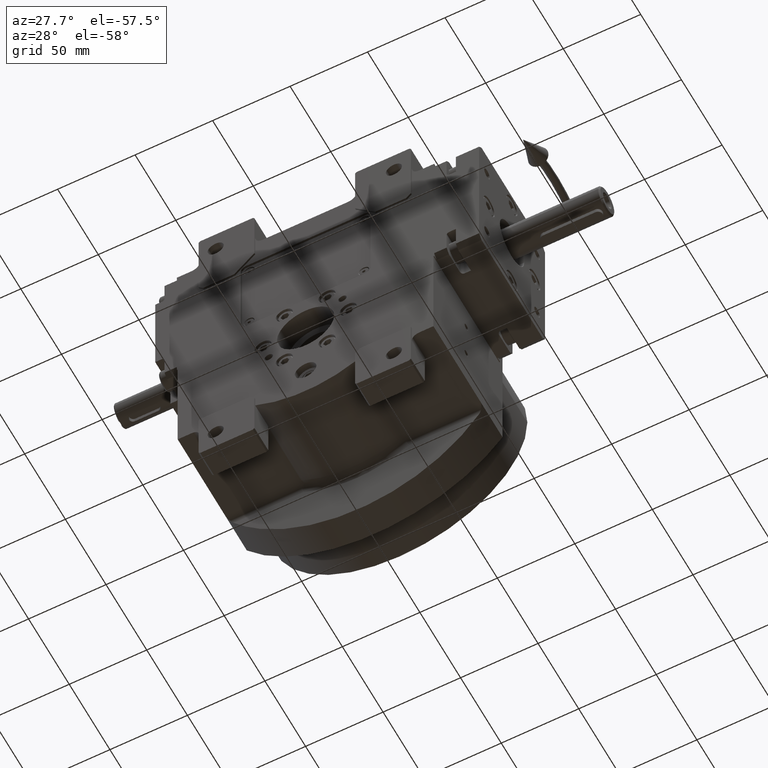
[diagram: clean part render]
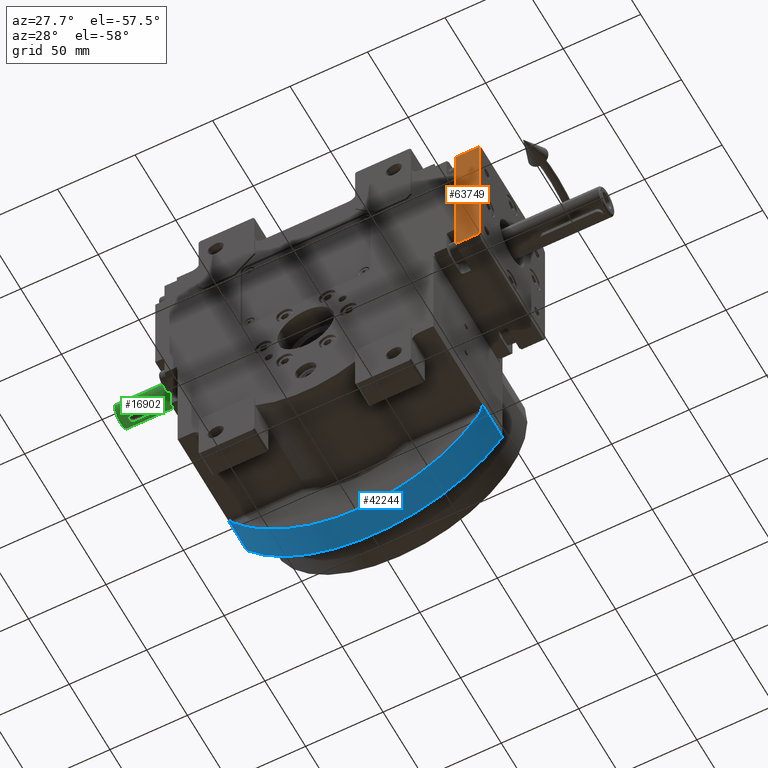
[diagram: same view with three faces highlighted in distinct colors, each labeled with its STEP entity id]
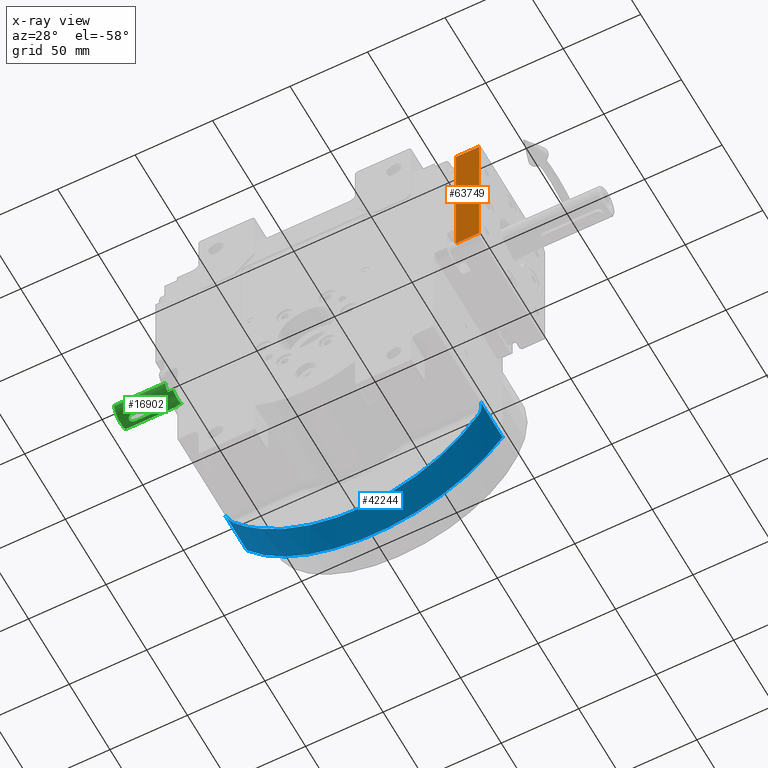
[diagram: x-ray of the same camera — body ghosted, the three highlighted faces saturated]
A machine part, auxiliary view with three faces highlighted in distinct colors.
The next image is the same camera in x-ray (body ghosted, the three faces saturated) — at least one of them is partly hidden behind the body in this view.
Their STEP definitions:

[orange] entity #63749 — the highlighted planar face has unit normal (0, -1, -0).
#1235 = ORIENTED_EDGE ( 'NONE', *, *, #16717, .T. ) ;
#2123 = LINE ( 'NONE', #2471, #62214 ) ;
#2471 = CARTESIAN_POINT ( 'NONE',  ( -40.49999999999940314, -15.00000000000000000, -46.00000000000052580 ) ) ;
#2991 = DIRECTION ( 'NONE',  ( -9.547918011776208986E-15, 4.930380657631240582E-32, 1.000000000000000000 ) ) ;
#5253 = VERTEX_POINT ( 'NONE', #26315 ) ;
#8892 = LINE ( 'NONE', #27220, #50886 ) ;
#8936 = DIRECTION ( 'NONE',  ( -1.399999034475975771E-30, -1.000000000000000000, 0.000000000000000000 ) ) ;
#10749 = VERTEX_POINT ( 'NONE', #43440 ) ;
#12727 = ORIENTED_EDGE ( 'NONE', *, *, #20125, .F. ) ;
#14967 = VERTEX_POINT ( 'NONE', #44218 ) ;
#16717 = EDGE_CURVE ( 'NONE', #37154, #14967, #2123, .T. ) ;
#19653 = DIRECTION ( 'NONE',  ( -9.547918011776207408E-15, 4.930380657631240582E-32, 1.000000000000000000 ) ) ;
#20125 = EDGE_CURVE ( 'NONE', #5253, #14967, #70203, .T. ) ;
#22945 = AXIS2_PLACEMENT_3D ( 'NONE', #62449, #67590, #2991 ) ;
#25502 = CARTESIAN_POINT ( 'NONE',  ( -40.49999999999940314, 0.000000000000000000, -46.00000000000000000 ) ) ;
#26315 = CARTESIAN_POINT ( 'NONE',  ( -40.50000000000037659, 0.000000000000000000, 46.00000000000105160 ) ) ;
#27220 = CARTESIAN_POINT ( 'NONE',  ( -40.49999999999940314, 0.000000000000000000, -46.00000000000000000 ) ) ;
#31274 = DIRECTION ( 'NONE',  ( -1.399999034475975771E-30, -1.000000000000000000, 0.000000000000000000 ) ) ;
#37154 = VERTEX_POINT ( 'NONE', #63437 ) ;
#40051 = PLANE ( 'NONE',  #22945 ) ;
#42331 = CARTESIAN_POINT ( 'NONE',  ( -40.50000000000037659, 0.000000000000000000, 46.00000000000105160 ) ) ;
#43440 = CARTESIAN_POINT ( 'NONE',  ( -40.49999999999940314, 0.000000000000000000, -46.00000000000000000 ) ) ;
#44218 = CARTESIAN_POINT ( 'NONE',  ( -40.50000000000037659, -15.00000000000000000, 46.00000000000106581 ) ) ;
#45201 = FACE_OUTER_BOUND ( 'NONE', #64987, .T. ) ;
#50886 = VECTOR ( 'NONE', #31274, 1000.000000000000000 ) ;
#52306 = DIRECTION ( 'NONE',  ( -9.547918011776207408E-15, 4.930380657631240582E-32, 1.000000000000000000 ) ) ;
#58715 = ORIENTED_EDGE ( 'NONE', *, *, #69005, .F. ) ;
#60580 = VECTOR ( 'NONE', #8936, 1000.000000000000000 ) ;
#62214 = VECTOR ( 'NONE', #52306, 1000.000000000000000 ) ;
#62289 = EDGE_CURVE ( 'NONE', #10749, #37154, #8892, .T. ) ;
#62449 = CARTESIAN_POINT ( 'NONE',  ( -40.49999999999940314, 0.000000000000000000, -49.00000000000052580 ) ) ;
#63437 = CARTESIAN_POINT ( 'NONE',  ( -40.49999999999940314, -15.00000000000000000, -46.00000000000052580 ) ) ;
#63749 = ADVANCED_FACE ( 'NONE', ( #45201 ), #40051, .T. ) ;
#64987 = EDGE_LOOP ( 'NONE', ( #58715, #67116, #1235, #12727 ) ) ;
#67116 = ORIENTED_EDGE ( 'NONE', *, *, #62289, .T. ) ;
#67590 = DIRECTION ( 'NONE',  ( -1.000000000000000000, -1.406162010298009320E-30, -9.547918011776208986E-15 ) ) ;
#69005 = EDGE_CURVE ( 'NONE', #10749, #5253, #71346, .T. ) ;
#70203 = LINE ( 'NONE', #42331, #60580 ) ;
#71346 = LINE ( 'NONE', #25502, #72180 ) ;
#72180 = VECTOR ( 'NONE', #19653, 1000.000000000000000 ) ;

[blue] entity #42244 — the highlighted cylindrical surface (partial cylindrical patch) has radius 101 mm, axis along (0, -1, 0).
#73 = CARTESIAN_POINT ( 'NONE',  ( 81.69830013237982769, 20.07905893341697734, -59.38364006391446281 ) ) ;
#340 = VERTEX_POINT ( 'NONE', #2726 ) ;
#724 = CARTESIAN_POINT ( 'NONE',  ( -82.50000025288930772, 16.91834889469715009, -58.26448317800269905 ) ) ;
#1573 = VERTEX_POINT ( 'NONE', #72190 ) ;
#1592 = VECTOR ( 'NONE', #13487, 1000.000000000000000 ) ;
#2726 = CARTESIAN_POINT ( 'NONE',  ( 82.50000000000000000, 44.50000000000000000, -58.26448317800490173 ) ) ;
#4100 = CARTESIAN_POINT ( 'NONE',  ( 82.25085206093629608, 18.75917311272343113, -58.61567809756788705 ) ) ;
#4561 = CARTESIAN_POINT ( 'NONE',  ( -80.22746404056894676, 21.53953279467798509, -61.35597532382573149 ) ) ;
#4810 = CARTESIAN_POINT ( 'NONE',  ( 81.49143229551002321, 20.39137980498475500, -59.66698084528087520 ) ) ;
#6106 = CARTESIAN_POINT ( 'NONE',  ( 79.07941511760090236, 21.89931762037159757, -62.82870446426660749 ) ) ;
#8505 = CARTESIAN_POINT ( 'NONE',  ( -79.07941511760090236, 21.89931762037159757, -62.82870446426660749 ) ) ;
#9308 = CARTESIAN_POINT ( 'NONE',  ( -81.34917618832122344, 20.58147960828986101, -59.86078435060557723 ) ) ;
#9565 = CARTESIAN_POINT ( 'NONE',  ( 80.50647476030944460, 21.37121998119656752, -60.98950514526089961 ) ) ;
#9681 = CARTESIAN_POINT ( 'NONE',  ( -81.73812114539012441, 20.02036615768224337, -59.32899351946324629 ) ) ;
#10407 = CARTESIAN_POINT ( 'NONE',  ( -80.73001530451037411, 21.21695493100238750, -60.69395992479112323 ) ) ;
#10650 = CARTESIAN_POINT ( 'NONE',  ( 81.42790458846677382, 20.47856128304887235, -59.75363274100349287 ) ) ;
#10780 = CARTESIAN_POINT ( 'NONE',  ( -82.50000025288930772, 16.91834889469715009, -58.26448317800269905 ) ) ;
#12522 = EDGE_CURVE ( 'NONE', #56505, #40144, #22653, .T. ) ;
#13487 = DIRECTION ( 'NONE',  ( 0.000000000000000000, 1.000000000000000000, -3.204722641206275033E-13 ) ) ;
#14793 = B_SPLINE_CURVE_WITH_KNOTS ( 'NONE', 3,
 ( #22051, #55407, #20937, #31961, #71940, #54662, #49902, #4100, #27173, #59824, #43309, #72306, #38170, #73, #32326, #4810, #43693, #22413, #10650, #26799, #16152, #44434, #16512, #9565, #55767, #33055, #49531, #60574, #66796, #15053 ),
 .UNSPECIFIED., .F., .F.,
 ( 4, 2, 2, 1, 2, 2, 2, 1, 1, 1, 2, 2, 2, 1, 1, 2, 2, 4 ),
 ( 0.000000000000000000, 0.1249999999999952538, 0.1874999999999928946, 0.2187499999999911737, 0.2343749999999912847, 0.2499999999999913958, 0.3749999999999962808, 0.4374999999999999445, 0.4687500000000017208, 0.4843750000000011657, 0.4921874999999993894, 0.4999999999999976685, 0.6249999999999937828, 0.6874999999999926725, 0.7187499999999908962, 0.7343749999999890088, 0.7499999999999870104, 1.000000000000000000 ),
 .UNSPECIFIED. ) ;
#15053 = CARTESIAN_POINT ( 'NONE',  ( 79.07941511760090236, 21.89931762037159757, -62.82870446426660749 ) ) ;
#15158 = CARTESIAN_POINT ( 'NONE',  ( -81.58804467211824374, 20.26496451395043863, -59.53548009540809716 ) ) ;
#16152 = CARTESIAN_POINT ( 'NONE',  ( 81.09354107287323643, 20.88633653462931505, -60.20738940263774452 ) ) ;
#16512 = CARTESIAN_POINT ( 'NONE',  ( 80.67986495983198836, 21.25008021150438253, -60.76023005191299831 ) ) ;
#19709 = AXIS2_PLACEMENT_3D ( 'NONE', #44077, #60938, #55029 ) ;
#19875 = CARTESIAN_POINT ( 'NONE',  ( -35.23829626675055948, 26.72700073187584380, -118.0093749299176551 ) ) ;
#20623 = EDGE_CURVE ( 'NONE', #1573, #23545, #14793, .T. ) ;
#20698 = CARTESIAN_POINT ( 'NONE',  ( -81.00253734387308668, 20.96910105288543491, -60.32919674137146160 ) ) ;
#20937 = CARTESIAN_POINT ( 'NONE',  ( 82.47253607967915912, 17.61559969205776710, -58.30341363773654706 ) ) ;
#21438 = CARTESIAN_POINT ( 'NONE',  ( -79.29669672345021070, 21.87734312251762603, -62.55522274197279842 ) ) ;
#21867 = EDGE_CURVE ( 'NONE', #340, #56505, #45481, .T. ) ;
#22051 = CARTESIAN_POINT ( 'NONE',  ( 82.50000025289411099, 16.91834889478760218, -58.26448317800100085 ) ) ;
#22413 = CARTESIAN_POINT ( 'NONE',  ( 81.43932428355820718, 20.46315245413490658, -59.73806804395727710 ) ) ;
#22653 = LINE ( 'NONE', #67409, #28825 ) ;
#23231 = CARTESIAN_POINT ( 'NONE',  ( -82.19212536373463251, 18.95499668696275108, -58.69799795093508976 ) ) ;
#23376 = EDGE_CURVE ( 'NONE', #53534, #40144, #55592, .T. ) ;
#23545 = VERTEX_POINT ( 'NONE', #6106 ) ;
#23709 = CARTESIAN_POINT ( 'NONE',  ( -79.07941511760090236, 21.89931762037159757, -62.82870446426660749 ) ) ;
#25862 =( BOUNDED_CURVE ( )  B_SPLINE_CURVE ( 3, ( #58400, #52871, #19875, #8505 ),
 .UNSPECIFIED., .F., .F. ) 
 B_SPLINE_CURVE_WITH_KNOTS ( ( 4, 4 ),
 ( 2.242175447501740138, 4.041009859677784810 ),
 .UNSPECIFIED. ) 
 CURVE ( )  GEOMETRIC_REPRESENTATION_ITEM ( )  RATIONAL_B_SPLINE_CURVE ( ( 1.000000000000000000, 0.7480442538895477611, 0.7480442538895477611, 1.000000000000000000 ) ) 
 REPRESENTATION_ITEM ( '' )  );
#26799 = CARTESIAN_POINT ( 'NONE',  ( 81.26217294362444932, 20.69966824175040188, -59.97940255426231460 ) ) ;
#27173 = CARTESIAN_POINT ( 'NONE',  ( 82.22811298002550018, 18.83783445398179879, -58.64757300461708667 ) ) ;
#28749 = CARTESIAN_POINT ( 'NONE',  ( -81.93438855332463788, 19.62647568005801091, -59.05733191141957406 ) ) ;
#28825 = VECTOR ( 'NONE', #62612, 1000.000000000000000 ) ;
#31961 = CARTESIAN_POINT ( 'NONE',  ( 82.39872407940163157, 18.11501507563944102, -58.40763719235167883 ) ) ;
#32326 = CARTESIAN_POINT ( 'NONE',  ( 81.56254368569533142, 20.28923244151389582, -59.56978747175477906 ) ) ;
#32796 = CARTESIAN_POINT ( 'NONE',  ( -81.13392427839578147, 20.83711865366613836, -60.15248250266186147 ) ) ;
#33055 = CARTESIAN_POINT ( 'NONE',  ( 80.37906699170480351, 21.45205541374012981, -61.15723489496355825 ) ) ;
#33531 = CARTESIAN_POINT ( 'NONE',  ( -82.18074734762859634, 18.99037054842644068, -58.71392683955053826 ) ) ;
#34276 = EDGE_CURVE ( 'NONE', #1573, #340, #46496, .T. ) ;
#37198 = CARTESIAN_POINT ( 'NONE',  ( -80.15227623940505453, 21.58000033619837055, -61.45424766586283027 ) ) ;
#37654 = ORIENTED_EDGE ( 'NONE', *, *, #34276, .F. ) ;
#38170 = CARTESIAN_POINT ( 'NONE',  ( 81.80366361176244538, 19.88883230163929738, -59.23827394342579566 ) ) ;
#39032 = CARTESIAN_POINT ( 'NONE',  ( -82.39818716574825430, 18.29214930068103584, -58.40933296397236774 ) ) ;
#39352 = ORIENTED_EDGE ( 'NONE', *, *, #23376, .T. ) ;
#40144 = VERTEX_POINT ( 'NONE', #724 ) ;
#40642 = CARTESIAN_POINT ( 'NONE',  ( 82.50000000000000000, 16.91835683624545084, -58.26448317799610521 ) ) ;
#40659 = ORIENTED_EDGE ( 'NONE', *, *, #43495, .T. ) ;
#42244 = ADVANCED_FACE ( 'NONE', ( #70851 ), #44070, .T. ) ;
#43071 = CARTESIAN_POINT ( 'NONE',  ( -81.39859511820240812, 20.51750846031091058, -59.79355307824163646 ) ) ;
#43309 = CARTESIAN_POINT ( 'NONE',  ( 82.11150391117881497, 19.21443188683993597, -58.81093780841251828 ) ) ;
#43495 = EDGE_CURVE ( 'NONE', #23545, #53534, #25862, .T. ) ;
#43693 = CARTESIAN_POINT ( 'NONE',  ( 81.46026041791650130, 20.43452737706277134, -59.70951587504499258 ) ) ;
#43815 = CARTESIAN_POINT ( 'NONE',  ( -80.53533946670283683, 21.36070962265149475, -60.95225153397537809 ) ) ;
#44070 = CYLINDRICAL_SURFACE ( 'NONE', #44980, 101.0000000000000000 ) ;
#44077 = CARTESIAN_POINT ( 'NONE',  ( 7.105427357600998703E-15, 44.50000000000000000, -2.842170943040399481E-14 ) ) ;
#44175 = CARTESIAN_POINT ( 'NONE',  ( -79.61551648198906150, 21.80882043248135105, -62.14957175091598884 ) ) ;
#44434 = CARTESIAN_POINT ( 'NONE',  ( 80.82102002133457574, 21.13419041274626409, -60.57215332407864139 ) ) ;
#44546 = CARTESIAN_POINT ( 'NONE',  ( -82.11890825924537296, 19.17333040572686897, -58.80041014588149295 ) ) ;
#44980 = AXIS2_PLACEMENT_3D ( 'NONE', #65337, #55411, #72310 ) ;
#45481 = CIRCLE ( 'NONE', #19709, 101.0000000000000568 ) ;
#46496 = LINE ( 'NONE', #40642, #1592 ) ;
#49270 = CARTESIAN_POINT ( 'NONE',  ( -80.27744809373503188, 21.51181358067990956, -61.29056225779282130 ) ) ;
#49531 = CARTESIAN_POINT ( 'NONE',  ( 80.35206367196470012, 21.46838346584645407, -61.19270825183458840 ) ) ;
#49902 = CARTESIAN_POINT ( 'NONE',  ( 82.28383433506067490, 18.64069096983530827, -58.56938613292126661 ) ) ;
#50747 = CARTESIAN_POINT ( 'NONE',  ( -82.15636516664353906, 19.06389190313688786, -58.74803913442542580 ) ) ;
#50770 = ORIENTED_EDGE ( 'NONE', *, *, #21867, .F. ) ;
#51093 = CARTESIAN_POINT ( 'NONE',  ( -82.49609777619635054, 17.62626212257189451, -58.27000855899486709 ) ) ;
#52871 = CARTESIAN_POINT ( 'NONE',  ( 35.23829626675085080, 26.72700073187583669, -118.0093749299175983 ) ) ;
#53534 = VERTEX_POINT ( 'NONE', #23709 ) ;
#54056 = CARTESIAN_POINT ( 'NONE',  ( -81.37888672156219627, 20.54319761275450773, -59.82037339315679247 ) ) ;
#54662 = CARTESIAN_POINT ( 'NONE',  ( 82.31344566182397671, 18.52073843394552455, -58.52775116034806757 ) ) ;
#55029 = DIRECTION ( 'NONE',  ( 0.8168316831683155588, 0.000000000000000000, -0.5768760710693557892 ) ) ;
#55407 = CARTESIAN_POINT ( 'NONE',  ( 82.49804962506094341, 17.27219997499132020, -58.26724482499226099 ) ) ;
#55411 = DIRECTION ( 'NONE',  ( 0.000000000000000000, -1.000000000000000000, 0.000000000000000000 ) ) ;
#55592 = B_SPLINE_CURVE_WITH_KNOTS ( 'NONE', 3,
 ( #70601, #21438, #44175, #70950, #37198, #4561, #49270, #71676, #43815, #10407, #20698, #32796, #59580, #9308, #54056, #43071, #65448, #15158, #9681, #28749, #72417, #44546, #50747, #33531, #23231, #39032, #51093, #10780 ),
 .UNSPECIFIED., .F., .F.,
 ( 4, 1, 1, 1, 2, 2, 2, 1, 1, 1, 2, 2, 2, 1, 1, 2, 2, 4 ),
 ( 0.000000000000000000, 0.1249999999999688582, 0.1874999999999539535, 0.2187499999999441003, 0.2343749999999404088, 0.2499999999999367450, 0.3749999999999046318, 0.4374999999998889222, 0.4687499999998822608, 0.4843749999998798184, 0.4921874999998806510, 0.4999999999998814282, 0.6249999999999148459, 0.6874999999999311662, 0.7187499999999392708, 0.7343749999999439337, 0.7499999999999485967, 1.000000000000000000 ),
 .UNSPECIFIED. ) ;
#55767 = CARTESIAN_POINT ( 'NONE',  ( 80.43028219000714785, 21.42012309773772571, -61.08986411255584414 ) ) ;
#56505 = VERTEX_POINT ( 'NONE', #66688 ) ;
#58400 = CARTESIAN_POINT ( 'NONE',  ( 79.07941511760090236, 21.89931762037159757, -62.82870446426660749 ) ) ;
#59007 = ORIENTED_EDGE ( 'NONE', *, *, #12522, .F. ) ;
#59580 = CARTESIAN_POINT ( 'NONE',  ( -81.27881411053982674, 20.66904213262886003, -59.95633850576680857 ) ) ;
#59824 = CARTESIAN_POINT ( 'NONE',  ( 82.21583948808414277, 18.87870238641455956, -58.66477763873123052 ) ) ;
#60574 = CARTESIAN_POINT ( 'NONE',  ( 79.92973229158195636, 21.71657702894173170, -61.74680443087934378 ) ) ;
#60938 = DIRECTION ( 'NONE',  ( 0.000000000000000000, 1.000000000000000000, 0.000000000000000000 ) ) ;
#62612 = DIRECTION ( 'NONE',  ( 0.000000000000000000, -1.000000000000000000, 3.199570353973790170E-13 ) ) ;
#65337 = CARTESIAN_POINT ( 'NONE',  ( 0.000000000000000000, -40.50000000000000000, 6.123233995736770082E-21 ) ) ;
#65448 = CARTESIAN_POINT ( 'NONE',  ( -81.40753760543589124, 20.50573026603647619, -59.78137789468193830 ) ) ;
#66688 = CARTESIAN_POINT ( 'NONE',  ( -82.50000000000000000, 44.50000000000000000, -58.26448317800490173 ) ) ;
#66796 = CARTESIAN_POINT ( 'NONE',  ( 79.51411100511737118, 21.85535520666392983, -62.28157402712096768 ) ) ;
#67409 = CARTESIAN_POINT ( 'NONE',  ( -82.50000000000000000, 44.50000000000000000, -58.26448317800490173 ) ) ;
#68965 = ORIENTED_EDGE ( 'NONE', *, *, #20623, .T. ) ;
#70601 = CARTESIAN_POINT ( 'NONE',  ( -79.07941511760090236, 21.89931762037159757, -62.82870446426660749 ) ) ;
#70851 = FACE_OUTER_BOUND ( 'NONE', #71371, .T. ) ;
#70950 = CARTESIAN_POINT ( 'NONE',  ( -79.97535127551232392, 21.66664564340883103, -61.68461457508408330 ) ) ;
#71371 = EDGE_LOOP ( 'NONE', ( #50770, #37654, #68965, #40659, #39352, #59007 ) ) ;
#71676 = CARTESIAN_POINT ( 'NONE',  ( -80.30120579744968268, 21.49826727027429740, -61.25943347106313297 ) ) ;
#71940 = CARTESIAN_POINT ( 'NONE',  ( 82.36819266564545217, 18.27887283816367514, -58.45070407988076511 ) ) ;
#72190 = CARTESIAN_POINT ( 'NONE',  ( 82.50000025289411099, 16.91834889478760218, -58.26448317800100085 ) ) ;
#72306 = CARTESIAN_POINT ( 'NONE',  ( 81.99993046940103625, 19.49494182401489795, -58.96661193781081067 ) ) ;
#72310 = DIRECTION ( 'NONE',  ( 1.000000000000000000, 0.000000000000000000, 0.000000000000000000 ) ) ;
#72417 = CARTESIAN_POINT ( 'NONE',  ( -82.02530717054500542, 19.42278220544037382, -58.93101546184722395 ) ) ;

[green] entity #16902 — the highlighted cylindrical surface (edge-blend (fillet) strip) has radius 8 mm, axis along (-1, 0, -0).
#286 = CARTESIAN_POINT ( 'NONE',  ( -7.740656023228742022, -7.974629792047414512, -2.021280222097369350 ) ) ;
#621 = CARTESIAN_POINT ( 'NONE',  ( -7.749664401063705910, 10.01872935547022792, -1.986231297070850665 ) ) ;
#971 = CARTESIAN_POINT ( 'NONE',  ( -7.839977690278450595, 10.42802790405988311, -1.591968337224201724 ) ) ;
#1004 = CARTESIAN_POINT ( 'NONE',  ( -7.657274517123529023, -7.440225538193761423, -2.316482665155040088 ) ) ;
#1317 = CARTESIAN_POINT ( 'NONE',  ( -7.940919006667417790, 10.80399002368006478, 0.9704362042913028397 ) ) ;
#1352 = CARTESIAN_POINT ( 'NONE',  ( -7.605022254006595261, -6.790474098278227899, -2.483408542904558480 ) ) ;
#1692 = CARTESIAN_POINT ( 'NONE',  ( -7.798009086693891589, 10.24908076193292317, 1.786448939248669321 ) ) ;
#1722 = CARTESIAN_POINT ( 'NONE',  ( -7.995162348639846428, -8.985368823457067222, -0.3161290646995249531 ) ) ;
#2043 = CARTESIAN_POINT ( 'NONE',  ( -7.818950924554045834, 10.34151174380530591, 1.694038868013101107 ) ) ;
#2292 = ORIENTED_EDGE ( 'NONE', *, *, #64836, .F. ) ;
#2425 = CARTESIAN_POINT ( 'NONE',  ( -7.818308903479839422, -8.337577135602677103, -1.695263955323612848 ) ) ;
#2801 = CARTESIAN_POINT ( 'NONE',  ( -7.946851830538784967, -8.824367221382333426, -0.9205611239592297323 ) ) ;
#3810 = EDGE_CURVE ( 'NONE', #25683, #71637, #13034, .T. ) ;
#3830 = CARTESIAN_POINT ( 'NONE',  ( -7.670948581178381964, 9.545693707699285824, -2.270880331648928330 ) ) ;
#3952 = CARTESIAN_POINT ( 'NONE',  ( -7.712108559403882069, -7.816016782250823525, 2.127502132909679045 ) ) ;
#4303 = CARTESIAN_POINT ( 'NONE',  ( -7.736332535508957164, -7.949241378412951420, 2.037147536094310318 ) ) ;
#4556 = DIRECTION ( 'NONE',  ( 5.028988270783950259E-30, 1.000000000000000000, 3.217488641336500757E-29 ) ) ;
#4630 = CARTESIAN_POINT ( 'NONE',  ( -7.657274514683635402, 9.440225495199683792, 2.316482682551818773 ) ) ;
#4664 = CARTESIAN_POINT ( 'NONE',  ( -7.617678112720124517, -7.029917826378963674, 2.443521394260771640 ) ) ;
#4998 = CARTESIAN_POINT ( 'NONE',  ( -7.626113605264168704, 9.143576092737840000, 2.417132231454346414 ) ) ;
#5358 = CARTESIAN_POINT ( 'NONE',  ( -7.724778493946299562, 9.886405156516515191, 2.080357823360818426 ) ) ;
#5714 = CARTESIAN_POINT ( 'NONE',  ( -7.619989655309055365, 9.066245860163258286, 2.436251374074806186 ) ) ;
#5747 = CARTESIAN_POINT ( 'NONE',  ( -7.724778522608795939, -7.886405297773482204, -2.080357729226393726 ) ) ;
#5768 = VERTEX_POINT ( 'NONE', #36136 ) ;
#6080 = CARTESIAN_POINT ( 'NONE',  ( -7.785008876057604610, 10.18999816436970285, 1.842441418731128877 ) ) ;
#6082 = CARTESIAN_POINT ( 'NONE',  ( -6.106226635438360972E-13, 18.50000000000054357, -8.000000000000035527 ) ) ;
#6111 = CARTESIAN_POINT ( 'NONE',  ( -7.806699535334007400, -8.287437797547418938, -1.748100577266491706 ) ) ;
#6455 = CARTESIAN_POINT ( 'NONE',  ( -7.866367115377316033, 10.53234680562570524, 1.455977534968692755 ) ) ;
#6791 = CARTESIAN_POINT ( 'NONE',  ( -7.999984946499269611, 10.99999999902016157, -0.1559136959357281804 ) ) ;
#6798 = B_SPLINE_CURVE_WITH_KNOTS ( 'NONE', 3,
 ( #45699, #29199, #7173, #1352, #68091, #23688, #22985, #46058, #51190, #17103, #40550, #62948, #33626, #1004, #33984, #12681, #35049, #39480, #51917, #50844, #22256, #67391, #39832, #17450, #5747, #50469, #286, #11592, #6111, #45351, #2425, #19981, #52613, #46759, #52987, #36497, #25134, #41998, #8627, #58504, #46402, #7542, #36873, #35773, #30626, #24055, #13398, #2801, #63301, #63679, #58146, #19274, #1722, #18905, #42371 ),
 .UNSPECIFIED., .F., .F.,
 ( 4, 2, 2, 2, 2, 1, 1, 2, 2, 2, 2, 1, 1, 1, 2, 2, 2, 2, 2, 2, 2, 2, 1, 1, 1, 2, 2, 2, 1, 1, 1, 2, 4 ),
 ( 0.000000000000000000, 0.03124999999863926903, 0.04687499999795888966, 0.06249999999727851030, 0.09374999999591777933, 0.1093749999952372265, 0.1171874999948969293, 0.1210937499947267598, 0.1249999999945565765, 0.1562499999931941386, 0.1718749999925127392, 0.1796874999921719285, 0.1835937499920018146, 0.1855468749919167160, 0.1865234374918742222, 0.1874999999918317284, 0.2499999999890759605, 0.2578124999887314583, 0.2656249999883870672, 0.2812499999876985068, 0.3124999999863212752, 0.3144531249862347888, 0.3164062499861481914, 0.3203124999859750521, 0.3281249999856287736, 0.3437499999849362164, 0.3749999999835511022, 0.3789062499833780184, 0.3828124999832048792, 0.3906249999828584896, 0.4062499999821653218, 0.4374999999807790974, 0.4999999999780067039 ),
 .UNSPECIFIED. ) ;
#7140 = CARTESIAN_POINT ( 'NONE',  ( -7.957946083415724736, 10.86223953018513022, -0.8203742691562446732 ) ) ;
#7173 = CARTESIAN_POINT ( 'NONE',  ( -7.601064315155432460, -6.667645281010250891, -2.495729919426480148 ) ) ;
#7511 = CARTESIAN_POINT ( 'NONE',  ( -7.822115816825180090, 10.35375000387849376, -1.677543191626158947 ) ) ;
#7542 = CARTESIAN_POINT ( 'NONE',  ( -7.899856527150351582, -8.658449960695531189, -1.262653213515654071 ) ) ;
#8210 = CARTESIAN_POINT ( 'NONE',  ( -7.599342076785392308, 8.500000000000007105, -2.500000000000142109 ) ) ;
#8379 = VECTOR ( 'NONE', #12639, 1000.000000000000000 ) ;
#8627 = CARTESIAN_POINT ( 'NONE',  ( -7.881301598824089538, -8.589253119451681684, -1.372971940772247823 ) ) ;
#8940 = CARTESIAN_POINT ( 'NONE',  ( -7.617678118112553243, 9.029917857827808092, -2.443521386917022475 ) ) ;
#9341 = EDGE_CURVE ( 'NONE', #37642, #68242, #29530, .T. ) ;
#9411 = CARTESIAN_POINT ( 'NONE',  ( -7.833655508177791660, -8.402641097587316921, 1.623753674898116728 ) ) ;
#9788 = CARTESIAN_POINT ( 'NONE',  ( -7.670948579166386061, -7.545693686769191721, 2.270880341298063598 ) ) ;
#10147 = CARTESIAN_POINT ( 'NONE',  ( -7.683399795064976168, -7.633681466435374929, 2.228549163935291677 ) ) ;
#10258 = EDGE_CURVE ( 'NONE', #18335, #68927, #57221, .T. ) ;
#10317 = LINE ( 'NONE', #66105, #59361 ) ;
#10506 = CARTESIAN_POINT ( 'NONE',  ( -7.980697463699272021, -8.940823933977828375, 0.6416072946251051290 ) ) ;
#10846 = CARTESIAN_POINT ( 'NONE',  ( -7.700175131315993404, 9.742333418130654010, 2.169897870716044341 ) ) ;
#10887 = CARTESIAN_POINT ( 'NONE',  ( -7.620319282521517579, -7.066686668034139807, 2.435251448458621404 ) ) ;
#11558 = CARTESIAN_POINT ( 'NONE',  ( -7.806698791854178587, 10.28743455259041184, -1.748103824073703016 ) ) ;
#11592 = CARTESIAN_POINT ( 'NONE',  ( -7.766181138575222853, -8.108601794240989591, -1.926896157381329910 ) ) ;
#11932 = CARTESIAN_POINT ( 'NONE',  ( -7.980695544395188357, 10.94080689485991087, 0.6416482357331324549 ) ) ;
#12292 = CARTESIAN_POINT ( 'NONE',  ( -7.780998603289602578, 10.17133684582571540, 1.859359978298561478 ) ) ;
#12639 = DIRECTION ( 'NONE',  ( -5.028988270783950259E-30, -1.000000000000000000, -3.217488641336500757E-29 ) ) ;
#12650 = CARTESIAN_POINT ( 'NONE',  ( -7.918985045654509669, 10.72738594534157919, 1.135965620674081134 ) ) ;
#12681 = CARTESIAN_POINT ( 'NONE',  ( -7.668200327694430385, -7.527483958348799575, -2.280258813161119669 ) ) ;
#12997 = CARTESIAN_POINT ( 'NONE',  ( -7.999982090879929508, 11.00000000195970173, 0.3118273447369484530 ) ) ;
#13005 = CARTESIAN_POINT ( 'NONE',  ( -6.000000000000005329, 18.50000000000054357, 5.291502622129051758 ) ) ;
#13034 = LINE ( 'NONE', #14822, #48997 ) ;
#13398 = CARTESIAN_POINT ( 'NONE',  ( -7.944516351723681424, -8.816357582644887003, -0.9405335252425955916 ) ) ;
#13795 = DIRECTION ( 'NONE',  ( 5.028988270783950259E-30, 1.000000000000000000, 3.217488641336500757E-29 ) ) ;
#14147 = DIRECTION ( 'NONE',  ( -0.7499999999999984457, 0.000000000000000000, -0.6614378277661495664 ) ) ;
#14514 = CARTESIAN_POINT ( 'NONE',  ( -6.000000000000060396, 18.50000000000054357, -5.291502622129308442 ) ) ;
#14583 = EDGE_CURVE ( 'NONE', #64793, #64776, #59533, .T. ) ;
#14792 = CARTESIAN_POINT ( 'NONE',  ( -7.661021806882082785, 9.470254434902736662, -2.304066809917436842 ) ) ;
#14822 = CARTESIAN_POINT ( 'NONE',  ( -7.599342076785337241, -6.500000000000005329, 2.499999999999867217 ) ) ;
#14910 = CARTESIAN_POINT ( 'NONE',  ( -7.667427320602748786, -7.519709476133543902, 2.282718977951658346 ) ) ;
#15267 = CARTESIAN_POINT ( 'NONE',  ( -7.762426901798054502, -8.082524201873939163, 1.935786860889370686 ) ) ;
#15605 = CARTESIAN_POINT ( 'NONE',  ( -7.599342076785073452, 8.500000000000007105, 2.499999999999857891 ) ) ;
#15651 = CARTESIAN_POINT ( 'NONE',  ( -7.798008126204820201, -8.249076481532668481, 1.786453217652258729 ) ) ;
#15965 = CARTESIAN_POINT ( 'NONE',  ( -7.722682470856994996, 9.874681593110569366, 2.088134513521174629 ) ) ;
#15998 = CARTESIAN_POINT ( 'NONE',  ( -7.870148552601055947, -8.546878638770436964, 1.435523779901909158 ) ) ;
#16368 = CARTESIAN_POINT ( 'NONE',  ( -7.874218415723020392, -8.562397185236335417, 1.413017684629369386 ) ) ;
#16902 = ADVANCED_FACE ( 'NONE', ( #31409, #59292 ), #44150, .T. ) ;
#16992 = ORIENTED_EDGE ( 'NONE', *, *, #41645, .F. ) ;
#17067 = CARTESIAN_POINT ( 'NONE',  ( -7.810447572200426514, 10.30374450156927679, -1.731217953469695203 ) ) ;
#17103 = CARTESIAN_POINT ( 'NONE',  ( -7.637261675882658807, -7.261285248908506240, -2.381622214422398187 ) ) ;
#17153 = ORIENTED_EDGE ( 'NONE', *, *, #35525, .F. ) ;
#17261 = CARTESIAN_POINT ( 'NONE',  ( -8.326672684688674053E-14, -14.50000000000001243, 1.776356839397651168E-15 ) ) ;
#17420 = CARTESIAN_POINT ( 'NONE',  ( -7.729055400556648081, 9.910033320374788346, -2.064433424120335925 ) ) ;
#17450 = CARTESIAN_POINT ( 'NONE',  ( -7.723938623400872672, -7.881714744468441225, -2.083476012860455473 ) ) ;
#17787 = CARTESIAN_POINT ( 'NONE',  ( -7.946852053313614661, 10.82436915705000224, -0.9205562516727971989 ) ) ;
#18154 = CARTESIAN_POINT ( 'NONE',  ( -7.869532006572331539, 10.54464776241704627, -1.439720344804886976 ) ) ;
#18335 = VERTEX_POINT ( 'NONE', #22960 ) ;
#18514 = CARTESIAN_POINT ( 'NONE',  ( -7.875889439934075753, 10.56874963327139483, 1.403669773341472471 ) ) ;
#18905 = CARTESIAN_POINT ( 'NONE',  ( -7.999983987892219872, -8.999999999989739763, -0.1559358289472140280 ) ) ;
#19247 = CARTESIAN_POINT ( 'NONE',  ( -7.664084486463556445, 9.494096124192232367, -2.293874090828096790 ) ) ;
#19274 = CARTESIAN_POINT ( 'NONE',  ( -7.980697442142974829, -8.938304694916066495, -0.5580494228027357284 ) ) ;
#19321 = LINE ( 'NONE', #41690, #21425 ) ;
#19358 = CIRCLE ( 'NONE', #35745, 8.000000000000175859 ) ;
#19981 = CARTESIAN_POINT ( 'NONE',  ( -7.822112037379855387, -8.353734015663372148, -1.677560817557955275 ) ) ;
#20016 = B_SPLINE_CURVE_WITH_KNOTS ( 'NONE', 3,
 ( #15605, #37992, #49718, #60383, #33593, #32501, #55941, #5714, #4998, #21864, #44238, #38710, #55593, #4630, #71752, #26983, #33245, #49342, #10846, #72481, #21512, #43877, #15965, #60747, #5358, #28086, #50431, #40166, #46374, #35021, #12292, #6080, #40519, #1692, #2043, #68772, #62916, #28456, #6455, #45666, #62565, #18514, #56685, #24371, #34676, #40881, #12650, #57389, #34323, #57036, #23299, #1317, #11932, #12997, #6791, #23657, #29167, #28812, #35390, #7140, #51881, #17787, #57767, #68053, #51512, #33950, #39448, #63271, #29527, #24025, #46024, #61841, #51158, #68432, #18154, #52225, #971, #46732, #7511, #29882, #17067, #11558, #56306, #50813, #621, #22954, #45320, #67705, #17420, #39798, #62192, #30229, #26185, #54028, #41254, #59211, #52581, #3830, #36095, #19247, #41966, #14792, #70585, #58476, #64352, #37173, #69131, #8940, #35743, #25803, #8210 ),
 .UNSPECIFIED., .F., .F.,
 ( 4, 2, 2, 2, 2, 1, 1, 2, 2, 2, 2, 1, 1, 1, 2, 2, 2, 2, 2, 2, 2, 2, 1, 1, 2, 2, 2, 1, 1, 2, 2, 2, 2, 2, 1, 1, 2, 2, 2, 2, 1, 1, 2, 2, 2, 2, 2, 2, 2, 2, 1, 1, 1, 2, 2, 2, 2, 1, 2, 2, 2, 2, 2, 4 ),
 ( 0.000000000000000000, 0.03124999999999732159, 0.04687499999999598238, 0.06249999999999464317, 0.09374999999999129863, 0.1093749999999896055, 0.1171874999999887590, 0.1210937499999883704, 0.1249999999999879818, 0.1562499999999814870, 0.1718749999999782674, 0.1796874999999764078, 0.1835937499999757694, 0.1855468749999754918, 0.1865234374999751310, 0.1874999999999747702, 0.2187499999999751588, 0.2343749999999752975, 0.2421874999999753808, 0.2499999999999754641, 0.2812499999999767963, 0.2968749999999772404, 0.3046874999999771849, 0.3085937499999768518, 0.3105468749999770184, 0.3124999999999771294, 0.3437499999999827360, 0.3593749999999857336, 0.3671874999999871214, 0.3710937499999876765, 0.3749999999999882316, 0.5000000000000126565, 0.5625000000000248690, 0.5937500000000309752, 0.6093750000000340838, 0.6171875000000355271, 0.6210937500000360822, 0.6250000000000365263, 0.6562500000000414113, 0.6718750000000440759, 0.6796875000000456302, 0.6835937500000465183, 0.6855468750000467404, 0.6875000000000468514, 0.7187500000000487388, 0.7343750000000496270, 0.7421875000000498490, 0.7500000000000500711, 0.7812500000000514033, 0.7968750000000524025, 0.8046875000000531797, 0.8085937500000536238, 0.8105468750000536238, 0.8115234375000532907, 0.8125000000000528466, 0.8437500000000419664, 0.8593750000000365263, 0.8671875000000337508, 0.8710937500000326406, 0.8750000000000314193, 0.9062500000000232037, 0.9218750000000190958, 0.9375000000000149880, 1.000000000000000000 ),
 .UNSPECIFIED. ) ;
#20449 = CARTESIAN_POINT ( 'NONE',  ( -7.781001480692795624, -8.171350014725661026, 1.859348112012540355 ) ) ;
#20797 = CARTESIAN_POINT ( 'NONE',  ( -7.661895575357880794, -7.477105763931899851, 2.301162700644161951 ) ) ;
#20814 = DIRECTION ( 'NONE',  ( -0.7500000000000014433, 0.000000000000000000, 0.6614378277661461247 ) ) ;
#21051 = CARTESIAN_POINT ( 'NONE',  ( 0.000000000000000000, 18.50000000000054357, -3.552713678800035501E-15 ) ) ;
#21160 = CARTESIAN_POINT ( 'NONE',  ( -7.726094655830539004, -7.893721478926240209, 2.075462118317775495 ) ) ;
#21425 = VECTOR ( 'NONE', #13795, 1000.000000000000000 ) ;
#21512 = CARTESIAN_POINT ( 'NONE',  ( -7.714072043893927422, 9.825599978242728127, 2.119820395924732814 ) ) ;
#21553 = CARTESIAN_POINT ( 'NONE',  ( -7.852621985176591934, -8.478801237893561549, 1.528398000081773622 ) ) ;
#21776 = CARTESIAN_POINT ( 'NONE',  ( -6.000000000000005329, 18.50000000000054357, 5.291502622129051758 ) ) ;
#21864 = CARTESIAN_POINT ( 'NONE',  ( -7.637261688103139434, 9.261285322827921718, 2.381622190885048340 ) ) ;
#21902 = CARTESIAN_POINT ( 'NONE',  ( -7.875890344786150798, -8.568752829731700160, 1.403665058619066430 ) ) ;
#22256 = CARTESIAN_POINT ( 'NONE',  ( -7.714072064914495819, -7.825600082300069538, -2.119820331097357791 ) ) ;
#22655 = ORIENTED_EDGE ( 'NONE', *, *, #44644, .F. ) ;
#22954 = CARTESIAN_POINT ( 'NONE',  ( -7.743938465828314577, 9.989268953828698727, -2.008273042403232456 ) ) ;
#22960 = CARTESIAN_POINT ( 'NONE',  ( -8.000000000000062172, -14.50000000000001243, 2.351740978372983101E-09 ) ) ;
#22985 = CARTESIAN_POINT ( 'NONE',  ( -7.612765919353318367, -6.952742327616979523, -2.458965872638230632 ) ) ;
#23299 = CARTESIAN_POINT ( 'NONE',  ( -7.940028772635620236, 10.80092193619504748, 0.9776741871700286302 ) ) ;
#23657 = CARTESIAN_POINT ( 'NONE',  ( -7.995163786308136622, 10.98537302236839430, -0.3160960575175699172 ) ) ;
#23688 = CARTESIAN_POINT ( 'NONE',  ( -7.610461448454181266, -6.911438580099014573, -2.466246098710449530 ) ) ;
#24025 = CARTESIAN_POINT ( 'NONE',  ( -7.889222162295352447, 10.61900871907578114, -1.326888915456126972 ) ) ;
#24055 = CARTESIAN_POINT ( 'NONE',  ( -7.943162907986746291, -8.811708239887865446, -0.9518883688483192884 ) ) ;
#24371 = CARTESIAN_POINT ( 'NONE',  ( -7.877248025395636510, 10.57390947069561093, 1.396040962320749479 ) ) ;
#24505 = EDGE_CURVE ( 'NONE', #64449, #5768, #10317, .T. ) ;
#24762 = EDGE_CURVE ( 'NONE', #41270, #25683, #41427, .T. ) ;
#24890 = EDGE_LOOP ( 'NONE', ( #34310, #51615, #34010, #43980, #16992 ) ) ;
#25134 = CARTESIAN_POINT ( 'NONE',  ( -7.878596839112149475, -8.579024431694421082, -1.388405784732242854 ) ) ;
#25683 = VERTEX_POINT ( 'NONE', #64221 ) ;
#25803 = CARTESIAN_POINT ( 'NONE',  ( -7.599879391514158478, 8.668702861449720132, -2.500000000000137668 ) ) ;
#25928 = CARTESIAN_POINT ( 'NONE',  ( -7.858430025142280506, -8.501602191622358973, 1.498267243204110200 ) ) ;
#26185 = CARTESIAN_POINT ( 'NONE',  ( -7.726044425183427933, 9.893444836934005338, -2.075649166055709927 ) ) ;
#26305 = CARTESIAN_POINT ( 'NONE',  ( -7.937879583209227263, -8.793501575971616191, 0.9949567978170127391 ) ) ;
#26658 = CARTESIAN_POINT ( 'NONE',  ( -7.743938414194391662, -7.989268687385895795, 2.008273239290690793 ) ) ;
#26983 = CARTESIAN_POINT ( 'NONE',  ( -7.668200324345895602, 9.527483920677822127, 2.280258831111348528 ) ) ;
#27020 = CARTESIAN_POINT ( 'NONE',  ( -7.934598688310455117, -8.782152912066639061, 1.020985076716943274 ) ) ;
#28081 = CARTESIAN_POINT ( 'NONE',  ( -7.599342076785392308, 8.500000000000007105, -2.500000000000142109 ) ) ;
#28086 = CARTESIAN_POINT ( 'NONE',  ( -7.725387212731404496, 9.889793313502982741, 2.078094563100466807 ) ) ;
#28456 = CARTESIAN_POINT ( 'NONE',  ( -7.858424809488385065, 10.50158257647105664, 1.498293586801583421 ) ) ;
#28812 = CARTESIAN_POINT ( 'NONE',  ( -7.974671713781322779, 10.91844612971858552, -0.6389180692160050246 ) ) ;
#28927 = DIRECTION ( 'NONE',  ( 5.028988270783950259E-30, 1.000000000000000000, 3.217488641336500757E-29 ) ) ;
#29167 = CARTESIAN_POINT ( 'NONE',  ( -7.980698877925072487, 10.93831210233454598, -0.5580170571611112740 ) ) ;
#29199 = CARTESIAN_POINT ( 'NONE',  ( -7.599610693731793987, -6.584334723118930199, -2.500000000000137224 ) ) ;
#29527 = CARTESIAN_POINT ( 'NONE',  ( -7.893782065358741384, 10.63592097824822247, -1.299344474639297253 ) ) ;
#29530 = LINE ( 'NONE', #13005, #40694 ) ;
#29882 = CARTESIAN_POINT ( 'NONE',  ( -7.818312088486548461, 10.33759076527112164, -1.695249246791598718 ) ) ;
#30104 = DIRECTION ( 'NONE',  ( 5.028988270783950259E-30, 1.000000000000000000, 3.217488641336500757E-29 ) ) ;
#30229 = CARTESIAN_POINT ( 'NONE',  ( -7.726094674724135913, 9.893721572861970515, -2.075462055241806603 ) ) ;
#30565 = CARTESIAN_POINT ( 'NONE',  ( -6.000000000000060396, 18.50000000000054357, -5.291502622129308442 ) ) ;
#30626 = CARTESIAN_POINT ( 'NONE',  ( -7.933816060829138372, -8.779558468202258936, -1.029148283453856783 ) ) ;
#31332 = EDGE_CURVE ( 'NONE', #46336, #64793, #33079, .T. ) ;
#31409 = FACE_BOUND ( 'NONE', #24890, .T. ) ;
#31808 = CARTESIAN_POINT ( 'NONE',  ( -7.629834090008844605, -7.182859079824570614, 2.405282328503334455 ) ) ;
#32179 = CARTESIAN_POINT ( 'NONE',  ( -7.732775350933692948, -7.930266147985067349, 2.050536285096832501 ) ) ;
#32501 = CARTESIAN_POINT ( 'NONE',  ( -7.610461411958887368, 8.911438364252793676, 2.466246135030248698 ) ) ;
#32542 = CARTESIAN_POINT ( 'NONE',  ( -7.599342076785337241, -6.500000000000005329, 2.499999999999867217 ) ) ;
#32756 = ORIENTED_EDGE ( 'NONE', *, *, #40352, .T. ) ;
#32765 = CARTESIAN_POINT ( 'NONE',  ( -8.326672684688674053E-14, -14.50000000000001243, 8.881784196975252454E-16 ) ) ;
#32900 = CARTESIAN_POINT ( 'NONE',  ( -7.729055373105611082, -7.910033180036226241, 2.064433519869723899 ) ) ;
#33079 = CIRCLE ( 'NONE', #43599, 8.000000000000000000 ) ;
#33245 = CARTESIAN_POINT ( 'NONE',  ( -7.677905413353856012, 9.597576702087074807, 2.247662242743615924 ) ) ;
#33593 = CARTESIAN_POINT ( 'NONE',  ( -7.606637774589827927, 8.831061594767701806, 2.478315909362750258 ) ) ;
#33626 = CARTESIAN_POINT ( 'NONE',  ( -7.654844204338841607, -7.420231527821009365, -2.324497781422852682 ) ) ;
#33950 = CARTESIAN_POINT ( 'NONE',  ( -7.924329680634804696, 10.74654197988428805, -1.099869672103108709 ) ) ;
#33954 = DIRECTION ( 'NONE',  ( 5.028988270783950259E-30, 1.000000000000000000, 3.217488641336500757E-29 ) ) ;
#33984 = CARTESIAN_POINT ( 'NONE',  ( -7.658711875236480893, -7.451839925429555755, -2.311727411302235691 ) ) ;
#34010 = ORIENTED_EDGE ( 'NONE', *, *, #50275, .F. ) ;
#34150 = DIRECTION ( 'NONE',  ( -1.000000000000000000, -6.505213034913026604E-16, 2.939673447408655940E-10 ) ) ;
#34310 = ORIENTED_EDGE ( 'NONE', *, *, #3810, .F. ) ;
#34323 = CARTESIAN_POINT ( 'NONE',  ( -7.934595521304153465, 10.78214323704112232, 1.021006897969870542 ) ) ;
#34377 = CARTESIAN_POINT ( 'NONE',  ( -7.599342076785073452, 8.500000000000007105, 2.499999999999857891 ) ) ;
#34661 = LINE ( 'NONE', #62181, #8379 ) ;
#34676 = CARTESIAN_POINT ( 'NONE',  ( -7.891108706583535692, 10.62647181727947832, 1.317580379603381147 ) ) ;
#35021 = CARTESIAN_POINT ( 'NONE',  ( -7.769459565186877192, 10.11684157107170456, 1.907398453000360927 ) ) ;
#35049 = CARTESIAN_POINT ( 'NONE',  ( -7.677905417459887971, -7.597576733658496728, -2.247662227941513713 ) ) ;
#35390 = CARTESIAN_POINT ( 'NONE',  ( -7.963822675541611495, 10.88207045594552191, -0.7599439704952515307 ) ) ;
#35525 = EDGE_CURVE ( 'NONE', #37642, #5768, #35683, .T. ) ;
#35683 = CIRCLE ( 'NONE', #53249, 7.999999999999825917 ) ;
#35743 = CARTESIAN_POINT ( 'NONE',  ( -7.605156640088294395, 8.833212475600760172, -2.482886367908335945 ) ) ;
#35745 = AXIS2_PLACEMENT_3D ( 'NONE', #36904, #64420, #14147 ) ;
#35773 = CARTESIAN_POINT ( 'NONE',  ( -7.924323491686461551, -8.746521456702623709, -1.099911590010173468 ) ) ;
#36095 = CARTESIAN_POINT ( 'NONE',  ( -7.667427322750553387, 9.519709500358869647, -2.282718967080525463 ) ) ;
#36136 = CARTESIAN_POINT ( 'NONE',  ( 0.000000000000000000, 18.50000000000054357, 7.999999999999965361 ) ) ;
#36178 = DIRECTION ( 'NONE',  ( -1.809663530139005476E-14, 0.000000000000000000, -1.000000000000000000 ) ) ;
#36497 = CARTESIAN_POINT ( 'NONE',  ( -7.869528224857211818, -8.544634516007480585, -1.439740124075520544 ) ) ;
#36873 = CARTESIAN_POINT ( 'NONE',  ( -7.908308247135254376, -8.689115266421435280, -1.208073007163425583 ) ) ;
#36904 = CARTESIAN_POINT ( 'NONE',  ( 0.000000000000000000, 22.00000000000051870, 4.683861624749757595E-28 ) ) ;
#37173 = CARTESIAN_POINT ( 'NONE',  ( -7.626444713845952350, 9.143902610680431309, -2.415982786262282911 ) ) ;
#37288 = CARTESIAN_POINT ( 'NONE',  ( -7.876988897941753720, -8.572925308882956230, 1.397495807186371675 ) ) ;
#37305 = CARTESIAN_POINT ( 'NONE',  ( 0.000000000000000000, 18.50000000000054357, -4.440892098500161523E-15 ) ) ;
#37333 = VERTEX_POINT ( 'NONE', #28081 ) ;
#37616 = AXIS2_PLACEMENT_3D ( 'NONE', #58556, #65157, #36178 ) ;
#37642 = VERTEX_POINT ( 'NONE', #21776 ) ;
#37653 = CARTESIAN_POINT ( 'NONE',  ( -7.699863787163271134, -7.741869569860750033, 2.171271550294594288 ) ) ;
#37992 = CARTESIAN_POINT ( 'NONE',  ( -7.599610668966979787, 8.584334579730624526, 2.499999999999863221 ) ) ;
#38026 = CARTESIAN_POINT ( 'NONE',  ( -7.902975999635382998, -8.670003007698854347, 1.244086456379948968 ) ) ;
#38383 = CARTESIAN_POINT ( 'NONE',  ( -7.605156610450753085, -6.833212286728619134, 2.482886401503701546 ) ) ;
#38710 = CARTESIAN_POINT ( 'NONE',  ( -7.651260057461952258, 9.390267165245727909, 2.336284816988136726 ) ) ;
#39448 = CARTESIAN_POINT ( 'NONE',  ( -7.908314432885443779, 10.68913779988640300, -1.208032174181405072 ) ) ;
#39480 = CARTESIAN_POINT ( 'NONE',  ( -7.694369416824373253, -7.705765936253712312, -2.190386621413336954 ) ) ;
#39636 = DIRECTION ( 'NONE',  ( 6.661338149340800636E-16, -1.000000000000000000, 5.407682826782026163E-16 ) ) ;
#39798 = CARTESIAN_POINT ( 'NONE',  ( -7.727302924475895729, 9.900402361615585178, -2.070963970279529498 ) ) ;
#39832 = CARTESIAN_POINT ( 'NONE',  ( -7.722682497957555015, -7.874681726748943511, -2.088134425561439578 ) ) ;
#40166 = CARTESIAN_POINT ( 'NONE',  ( -7.743278745458219703, 9.986810080997960526, 2.011469677891878582 ) ) ;
#40352 = EDGE_CURVE ( 'NONE', #46336, #68927, #34661, .T. ) ;
#40519 = CARTESIAN_POINT ( 'NONE',  ( -7.793357275061124412, 10.22817784713570255, 1.806678030446586591 ) ) ;
#40550 = CARTESIAN_POINT ( 'NONE',  ( -7.643326257871012608, -7.320565348340906553, -2.362159888309653510 ) ) ;
#40694 = VECTOR ( 'NONE', #33954, 1000.000000000000000 ) ;
#40881 = CARTESIAN_POINT ( 'NONE',  ( -7.902969796476416953, 10.66997973449641002, 1.244127049505119542 ) ) ;
#41254 = CARTESIAN_POINT ( 'NONE',  ( -7.699863793423318725, 9.741869600887644864, -2.171271532933885862 ) ) ;
#41270 = VERTEX_POINT ( 'NONE', #63001 ) ;
#41427 = B_SPLINE_CURVE_WITH_KNOTS ( 'NONE', 3,
 ( #60419, #54160, #10506, #54515, #43541, #26305, #27020, #66285, #49380, #38026, #43169, #55628, #37288, #21902, #16368, #15998, #70705, #25928, #21553, #9411, #71791, #15651, #65191, #48292, #20449, #72158, #15267, #65925, #26658, #4303, #32179, #32900, #43917, #42808, #21160, #55254, #3952, #37653, #10147, #49006, #9788, #14910, #71051, #20797, #71413, #59681, #60055, #31808, #44277, #10887, #4664, #38383, #48655, #32542 ),
 .UNSPECIFIED., .F., .F.,
 ( 4, 2, 2, 1, 1, 2, 2, 2, 1, 1, 2, 2, 2, 2, 2, 2, 2, 1, 1, 1, 2, 2, 2, 2, 1, 2, 2, 2, 2, 2, 4 ),
 ( 0.4999999999780067039, 0.6249999999835202935, 0.6289062499836926001, 0.6328124999838649067, 0.6406249999842095200, 0.6562499999848985244, 0.6874999999862765332, 0.6894531249863624645, 0.6914062499864485067, 0.6953124999866205913, 0.7031249999869642053, 0.7187499999876516554, 0.7499999999890261115, 0.7578124999893696145, 0.7656249999897131175, 0.7812499999904001236, 0.7968749999910871296, 0.8046874999914308546, 0.8085937499916031612, 0.8105468749916897586, 0.8115234374917326132, 0.8124999999917753568, 0.8437499999931452610, 0.8593749999938300466, 0.8671874999941726614, 0.8710937499943440798, 0.8749999999945153872, 0.9062499999958866237, 0.9218749999965721864, 0.9374999999972578602, 1.000000000000000000 ),
 .UNSPECIFIED. ) ;
#41645 = EDGE_CURVE ( 'NONE', #71637, #37333, #20016, .T. ) ;
#41690 = CARTESIAN_POINT ( 'NONE',  ( -7.599342076785392308, -6.500000000000005329, -2.500000000000132783 ) ) ;
#41966 = CARTESIAN_POINT ( 'NONE',  ( -7.661895578303519194, 9.477105797576440338, -2.301162686349871311 ) ) ;
#41998 = CARTESIAN_POINT ( 'NONE',  ( -7.879689434043175567, -8.583162037776309816, -1.382196249327188875 ) ) ;
#42371 = CARTESIAN_POINT ( 'NONE',  ( -7.999991997699565260, -8.999990980747663016, -3.297654613636213846E-10 ) ) ;
#42808 = CARTESIAN_POINT ( 'NONE',  ( -7.726574882324661608, -7.896379721982782485, 2.073674573656081321 ) ) ;
#43169 = CARTESIAN_POINT ( 'NONE',  ( -7.891112839043294080, -8.626489160832742087, 1.317554493892801881 ) ) ;
#43200 = CARTESIAN_POINT ( 'NONE',  ( 1.065558752344486493E-08, -14.50000000007528556, 7.999999999924675365 ) ) ;
#43420 = DIRECTION ( 'NONE',  ( -1.787459069646502346E-14, 0.000000000000000000, -1.000000000000000000 ) ) ;
#43541 = CARTESIAN_POINT ( 'NONE',  ( -7.940029773766399401, -8.800924872688485223, 0.9776672433655796413 ) ) ;
#43599 = AXIS2_PLACEMENT_3D ( 'NONE', #21051, #4556, #43420 ) ;
#43877 = CARTESIAN_POINT ( 'NONE',  ( -7.719777577182462380, 9.858291698278508264, 2.098871620169352248 ) ) ;
#43917 = CARTESIAN_POINT ( 'NONE',  ( -7.727302901902333154, -7.900402247668325550, 2.070964047304901801 ) ) ;
#43980 = ORIENTED_EDGE ( 'NONE', *, *, #61038, .T. ) ;
#44150 = CYLINDRICAL_SURFACE ( 'NONE', #37616, 8.000000000000000000 ) ;
#44238 = CARTESIAN_POINT ( 'NONE',  ( -7.643326268999204309, 9.320565408074484637, 2.362159866744192094 ) ) ;
#44277 = CARTESIAN_POINT ( 'NONE',  ( -7.626444717560786124, -7.143902638985747622, 2.415982779006227599 ) ) ;
#44300 = ORIENTED_EDGE ( 'NONE', *, *, #9341, .T. ) ;
#44644 = EDGE_CURVE ( 'NONE', #64449, #18335, #67961, .T. ) ;
#45261 = VECTOR ( 'NONE', #58822, 1000.000000000000000 ) ;
#45320 = CARTESIAN_POINT ( 'NONE',  ( -7.736332577616511053, 9.949241596406887211, -2.037147381184005290 ) ) ;
#45351 = CARTESIAN_POINT ( 'NONE',  ( -7.810445813785888980, -8.303736805049988234, -1.731225908313895223 ) ) ;
#45666 = CARTESIAN_POINT ( 'NONE',  ( -7.870145651787323615, 10.54686819285890920, 1.435538763768742676 ) ) ;
#45691 = AXIS2_PLACEMENT_3D ( 'NONE', #32765, #64074, #47175 ) ;
#45699 = CARTESIAN_POINT ( 'NONE',  ( -7.599342076785392308, -6.500000000000005329, -2.500000000000132783 ) ) ;
#46024 = CARTESIAN_POINT ( 'NONE',  ( -7.883707643493949035, 10.59832734404994703, -1.359130032935418786 ) ) ;
#46058 = CARTESIAN_POINT ( 'NONE',  ( -7.619989657867171751, -7.066245866914536933, -2.436251368447497789 ) ) ;
#46081 = CARTESIAN_POINT ( 'NONE',  ( -8.326672684688674053E-14, -14.50000000000001243, -8.000000000000035527 ) ) ;
#46336 = VERTEX_POINT ( 'NONE', #6082 ) ;
#46374 = CARTESIAN_POINT ( 'NONE',  ( -7.762422580053430110, 10.08250358490607468, 1.935803715325479901 ) ) ;
#46402 = CARTESIAN_POINT ( 'NONE',  ( -7.889219016176688193, -8.618996049596164610, -1.326908976154830722 ) ) ;
#46732 = CARTESIAN_POINT ( 'NONE',  ( -7.833141412427774064, 10.40005464524851675, -1.625408653745600507 ) ) ;
#46759 = CARTESIAN_POINT ( 'NONE',  ( -7.839972008357154465, -8.428005121883135331, -1.591995928213136624 ) ) ;
#47175 = DIRECTION ( 'NONE',  ( 1.808519292393783527E-14, 0.000000000000000000, 1.000000000000000000 ) ) ;
#48292 = CARTESIAN_POINT ( 'NONE',  ( -7.785011302192692106, -8.190009154376641121, 1.842431290608167238 ) ) ;
#48655 = CARTESIAN_POINT ( 'NONE',  ( -7.599879365290489019, -6.668702691058381760, 2.499999999999863221 ) ) ;
#48997 = VECTOR ( 'NONE', #65104, 1000.000000000000000 ) ;
#49006 = CARTESIAN_POINT ( 'NONE',  ( -7.678228992078041770, -7.598119682054336188, 2.246246738018459865 ) ) ;
#49342 = CARTESIAN_POINT ( 'NONE',  ( -7.694369406829941305, 9.705765883429668506, 2.190386650334031238 ) ) ;
#49380 = CARTESIAN_POINT ( 'NONE',  ( -7.918991250507119162, -8.727407198976790070, 1.135923945974677940 ) ) ;
#49386 = ORIENTED_EDGE ( 'NONE', *, *, #24505, .T. ) ;
#49718 = CARTESIAN_POINT ( 'NONE',  ( -7.601064276211062065, 8.667645054921111480, 2.495729933866756234 ) ) ;
#49992 = EDGE_LOOP ( 'NONE', ( #49386, #17153, #44300, #2292, #53565, #63090, #32756, #57952, #22655 ) ) ;
#50275 = EDGE_CURVE ( 'NONE', #69833, #41270, #6798, .T. ) ;
#50431 = CARTESIAN_POINT ( 'NONE',  ( -7.733139016801557020, 9.932863856727067287, 2.049250553900862748 ) ) ;
#50469 = CARTESIAN_POINT ( 'NONE',  ( -7.725387240851736337, -7.889793451436073468, -2.078094470859459975 ) ) ;
#50813 = CARTESIAN_POINT ( 'NONE',  ( -7.768808236052439753, 10.11442204608119688, -1.910564298747437828 ) ) ;
#50844 = CARTESIAN_POINT ( 'NONE',  ( -7.709360326101486471, -7.797750532431239279, -2.136891627761669632 ) ) ;
#51158 = CARTESIAN_POINT ( 'NONE',  ( -7.879689921916749995, 10.58316408078938409, -1.382193177523865169 ) ) ;
#51190 = CARTESIAN_POINT ( 'NONE',  ( -7.626113596998536970, -7.143576033023848915, -2.417132246994160738 ) ) ;
#51512 = CARTESIAN_POINT ( 'NONE',  ( -7.933820184732142344, 10.77957040418500156, -1.029119593313637449 ) ) ;
#51615 = ORIENTED_EDGE ( 'NONE', *, *, #24762, .F. ) ;
#51881 = CARTESIAN_POINT ( 'NONE',  ( -7.950298931508330114, 10.83617327606148706, -0.8905620606375787007 ) ) ;
#51917 = CARTESIAN_POINT ( 'NONE',  ( -7.700175144064213661, -7.742333483072318501, -2.169897833938154719 ) ) ;
#52225 = CARTESIAN_POINT ( 'NONE',  ( -7.858944166177312951, 10.50418803459841399, -1.496612663384491615 ) ) ;
#52581 = CARTESIAN_POINT ( 'NONE',  ( -7.678228994221786508, 9.598119699086208101, -2.246246729645732909 ) ) ;
#52613 = CARTESIAN_POINT ( 'NONE',  ( -7.833136206238962451, -8.400033248968130195, -1.625433493732265644 ) ) ;
#52987 = CARTESIAN_POINT ( 'NONE',  ( -7.858938483348102189, -8.504166614682857173, -1.496641347286817858 ) ) ;
#53249 = AXIS2_PLACEMENT_3D ( 'NONE', #37305, #30104, #20814 ) ;
#53565 = ORIENTED_EDGE ( 'NONE', *, *, #14583, .F. ) ;
#54028 = CARTESIAN_POINT ( 'NONE',  ( -7.712108570150658871, 9.816016835437377352, -2.127502101777040355 ) ) ;
#54160 = CARTESIAN_POINT ( 'NONE',  ( -7.999984010412704905, -9.000000000020543567, 0.3118716574275748332 ) ) ;
#54515 = CARTESIAN_POINT ( 'NONE',  ( -7.940918945624039438, -8.803989484582560365, 0.9704374996217896010 ) ) ;
#54897 = AXIS2_PLACEMENT_3D ( 'NONE', #17261, #39636, #34150 ) ;
#55254 = CARTESIAN_POINT ( 'NONE',  ( -7.726044407597039587, -7.893444750241548569, 2.075649224252881009 ) ) ;
#55593 = CARTESIAN_POINT ( 'NONE',  ( -7.654844204821131370, 9.420231506114598474, 2.324497789962386651 ) ) ;
#55628 = CARTESIAN_POINT ( 'NONE',  ( -7.877247758819254209, -8.573908356511045881, 1.396042625276270766 ) ) ;
#55941 = CARTESIAN_POINT ( 'NONE',  ( -7.612765888282690518, 8.952742131180617235, 2.458965909810845396 ) ) ;
#56306 = CARTESIAN_POINT ( 'NONE',  ( -7.784192165088349213, 10.18809686728448227, -1.847419042669956601 ) ) ;
#56685 = CARTESIAN_POINT ( 'NONE',  ( -7.876988438292018557, 10.57292369365361573, 1.397498206811892407 ) ) ;
#57036 = CARTESIAN_POINT ( 'NONE',  ( -7.937877676923800863, 10.79349587128952592, 0.9949699799994196070 ) ) ;
#57221 = CIRCLE ( 'NONE', #54897, 8.000000000000000000 ) ;
#57389 = CARTESIAN_POINT ( 'NONE',  ( -7.926548573828249289, 10.75412700083584738, 1.082384327297592819 ) ) ;
#57767 = CARTESIAN_POINT ( 'NONE',  ( -7.944516461766632176, 10.81635858268966288, -0.9405310771788085722 ) ) ;
#57952 = ORIENTED_EDGE ( 'NONE', *, *, #10258, .F. ) ;
#58146 = CARTESIAN_POINT ( 'NONE',  ( -7.971656876989960061, -8.908504921120881548, -0.6793964370148937171 ) ) ;
#58476 = CARTESIAN_POINT ( 'NONE',  ( -7.640982165083587851, 9.300567574413690863, -2.369770024500429173 ) ) ;
#58504 = CARTESIAN_POINT ( 'NONE',  ( -7.883705967942038484, -8.598320449392561571, -1.359140628552879315 ) ) ;
#58556 = CARTESIAN_POINT ( 'NONE',  ( -8.326672684688674053E-14, -15.00000000000001421, -2.785665071561697938E-27 ) ) ;
#58822 = DIRECTION ( 'NONE',  ( 9.589590379092924760E-30, 1.000000000000000000, 2.537652627714952515E-16 ) ) ;
#59211 = CARTESIAN_POINT ( 'NONE',  ( -7.683399797834407075, 9.633681484462931266, -2.228549154858577186 ) ) ;
#59292 = FACE_OUTER_BOUND ( 'NONE', #49992, .T. ) ;
#59361 = VECTOR ( 'NONE', #28927, 1000.000000000000000 ) ;
#59533 = LINE ( 'NONE', #30565, #45261 ) ;
#59681 = CARTESIAN_POINT ( 'NONE',  ( -7.649720846600994051, -7.380167541214359694, 2.341543764679520745 ) ) ;
#60055 = CARTESIAN_POINT ( 'NONE',  ( -7.640982172138289563, -7.300567616680996075, 2.369770010351384570 ) ) ;
#60383 = CARTESIAN_POINT ( 'NONE',  ( -7.605022209670918798, 8.790473839629054709, 2.483408572969852735 ) ) ;
#60419 = CARTESIAN_POINT ( 'NONE',  ( -7.999991997699565260, -8.999990980747663016, -3.297654613636213846E-10 ) ) ;
#60527 = CARTESIAN_POINT ( 'NONE',  ( -6.000000000000005329, 22.00000000000051870, 5.291502622129051758 ) ) ;
#60747 = CARTESIAN_POINT ( 'NONE',  ( -7.723938595366857562, 9.881714606277157031, 2.083476104502885562 ) ) ;
#61038 = EDGE_CURVE ( 'NONE', #69833, #37333, #19321, .T. ) ;
#61841 = CARTESIAN_POINT ( 'NONE',  ( -7.881302571458890682, 10.58925715550691571, -1.372965806437928649 ) ) ;
#62181 = CARTESIAN_POINT ( 'NONE',  ( -5.828670879282071837E-13, 18.50000000000054357, -8.000000000000035527 ) ) ;
#62192 = CARTESIAN_POINT ( 'NONE',  ( -7.726574902704086867, 9.896379824005130388, -2.073674504959927667 ) ) ;
#62565 = CARTESIAN_POINT ( 'NONE',  ( -7.874216865330345705, 10.56239167973915372, 1.413025745176700765 ) ) ;
#62916 = CARTESIAN_POINT ( 'NONE',  ( -7.852616294803856256, 10.47877933185118238, 1.528426361149563428 ) ) ;
#62948 = CARTESIAN_POINT ( 'NONE',  ( -7.651260052980091153, -7.390267157407302001, -2.336284820294352027 ) ) ;
#63001 = CARTESIAN_POINT ( 'NONE',  ( -7.999991997699565260, -8.999990980747663016, -3.297654613636213846E-10 ) ) ;
#63090 = ORIENTED_EDGE ( 'NONE', *, *, #31332, .F. ) ;
#63271 = CARTESIAN_POINT ( 'NONE',  ( -7.902679435035097733, 10.66869311359750938, -1.244422812158144431 ) ) ;
#63301 = CARTESIAN_POINT ( 'NONE',  ( -7.950298545264418593, -8.836170032045325584, -0.8905704671531213812 ) ) ;
#63679 = CARTESIAN_POINT ( 'NONE',  ( -7.957945355145101374, -8.862233867186674274, -0.8203901879099854133 ) ) ;
#64074 = DIRECTION ( 'NONE',  ( -5.028988270783950259E-30, -1.000000000000000000, -3.217488641336500757E-29 ) ) ;
#64221 = CARTESIAN_POINT ( 'NONE',  ( -7.599342076785337241, -6.500000000000005329, 2.499999999999867217 ) ) ;
#64352 = CARTESIAN_POINT ( 'NONE',  ( -7.629834084662908467, 9.182859042383055836, -2.405282339101181055 ) ) ;
#64420 = DIRECTION ( 'NONE',  ( 5.028988270783950259E-30, 1.000000000000000000, 3.217488641336500757E-29 ) ) ;
#64449 = VERTEX_POINT ( 'NONE', #43200 ) ;
#64776 = VERTEX_POINT ( 'NONE', #64791 ) ;
#64791 = CARTESIAN_POINT ( 'NONE',  ( -6.000000000000324185, 22.00000000000051870, -5.291502622129308442 ) ) ;
#64793 = VERTEX_POINT ( 'NONE', #14514 ) ;
#64836 = EDGE_CURVE ( 'NONE', #64776, #68242, #19358, .T. ) ;
#65104 = DIRECTION ( 'NONE',  ( 5.028988270783950259E-30, 1.000000000000000000, 3.217488641336500757E-29 ) ) ;
#65157 = DIRECTION ( 'NONE',  ( -5.028988270783950259E-30, -1.000000000000000000, -3.217488641336500757E-29 ) ) ;
#65191 = CARTESIAN_POINT ( 'NONE',  ( -7.793358618215769695, -8.228183800796710301, 1.806672287149160505 ) ) ;
#65925 = CARTESIAN_POINT ( 'NONE',  ( -7.749664346031240214, -8.018729073758612103, 1.986231512394501131 ) ) ;
#66105 = CARTESIAN_POINT ( 'NONE',  ( 1.276756478318930021E-12, -14.50000000000001243, 7.999999999999965361 ) ) ;
#66285 = CARTESIAN_POINT ( 'NONE',  ( -7.926554003438892160, -8.754144513868073574, 1.082347325202289712 ) ) ;
#67391 = CARTESIAN_POINT ( 'NONE',  ( -7.719777602169842545, -7.858291821616327333, -2.098871540419708470 ) ) ;
#67705 = CARTESIAN_POINT ( 'NONE',  ( -7.732775387170930159, 9.930266335386756182, -2.050536154773778819 ) ) ;
#67961 = CIRCLE ( 'NONE', #45691, 8.000000000000000000 ) ;
#68053 = CARTESIAN_POINT ( 'NONE',  ( -7.943162383139123150, 10.81170671168997188, -0.9518920421091074946 ) ) ;
#68091 = CARTESIAN_POINT ( 'NONE',  ( -7.606637818076269042, -6.831061849080318105, -2.478315875081691377 ) ) ;
#68242 = VERTEX_POINT ( 'NONE', #60527 ) ;
#68432 = CARTESIAN_POINT ( 'NONE',  ( -7.878596580316718168, 10.57902351663136642, -1.388407151045347510 ) ) ;
#68772 = CARTESIAN_POINT ( 'NONE',  ( -7.833649818474545334, 10.40261782779354860, 1.623780940840403364 ) ) ;
#68927 = VERTEX_POINT ( 'NONE', #46081 ) ;
#69131 = CARTESIAN_POINT ( 'NONE',  ( -7.620319284191918285, 9.066686673580765188, -2.435251446882377824 ) ) ;
#69833 = VERTEX_POINT ( 'NONE', #70707 ) ;
#70585 = CARTESIAN_POINT ( 'NONE',  ( -7.649720842657127484, 9.380167526017849866, -2.341543772565651604 ) ) ;
#70705 = CARTESIAN_POINT ( 'NONE',  ( -7.866370906539946972, -8.532360691382576690, 1.455958116332377816 ) ) ;
#70707 = CARTESIAN_POINT ( 'NONE',  ( -7.599342076785392308, -6.500000000000005329, -2.500000000000132783 ) ) ;
#71051 = CARTESIAN_POINT ( 'NONE',  ( -7.664084483877389609, -7.494096094595430912, 2.293874103662838948 ) ) ;
#71413 = CARTESIAN_POINT ( 'NONE',  ( -7.661021802552385296, -7.470254389768755665, 2.304066828888795992 ) ) ;
#71637 = VERTEX_POINT ( 'NONE', #34377 ) ;
#71752 = CARTESIAN_POINT ( 'NONE',  ( -7.658711869185054866, 9.451839855107522226, 2.311727440271675871 ) ) ;
#71791 = CARTESIAN_POINT ( 'NONE',  ( -7.818954714042943621, -8.341528619546075163, 1.694022000203355471 ) ) ;
#72158 = CARTESIAN_POINT ( 'NONE',  ( -7.769463525728018460, -8.116860130156863917, 1.907382607916640049 ) ) ;
#72481 = CARTESIAN_POINT ( 'NONE',  ( -7.709360308036112386, 9.797750442539376436, 2.136891682251111035 ) ) ;